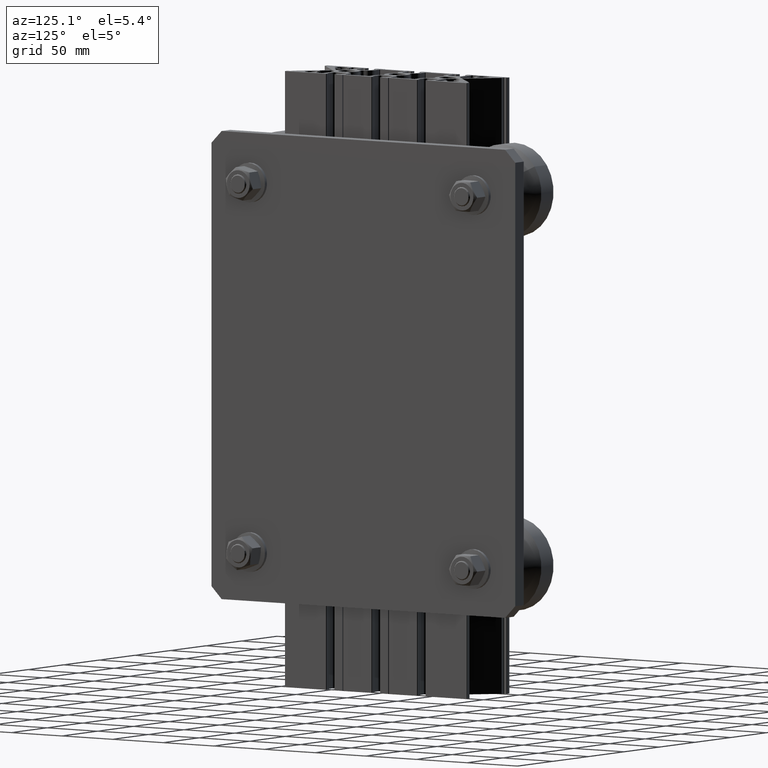
[diagram: clean part render]
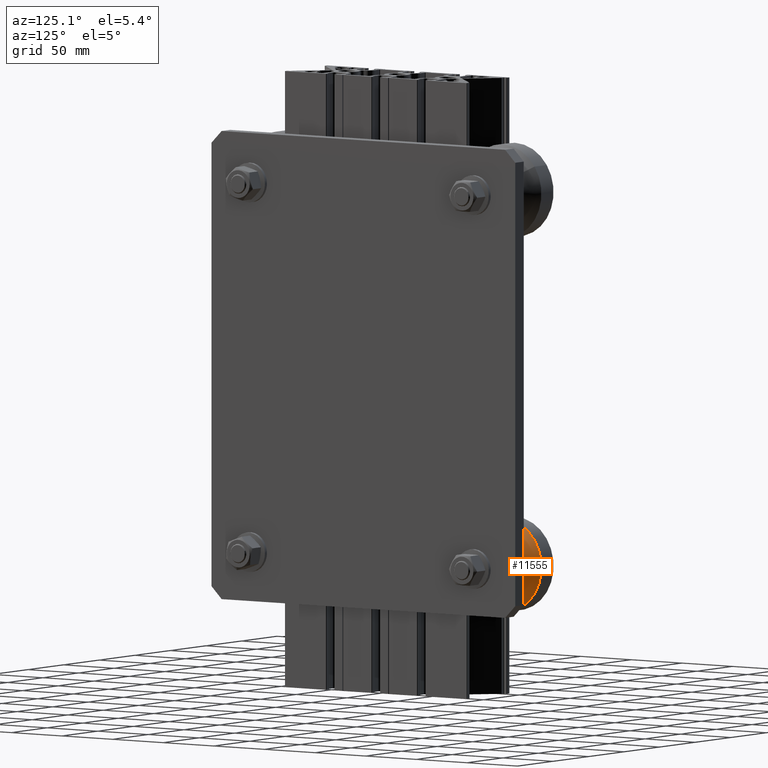
[diagram: same view with one face highlighted and labeled with its STEP entity id]
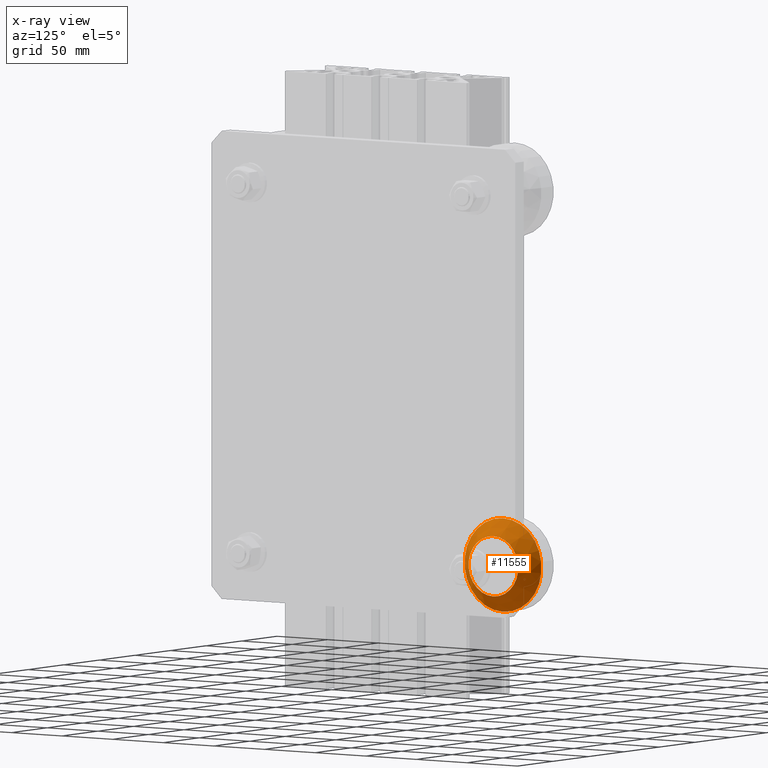
[diagram: x-ray of the same camera — body ghosted, the highlighted face saturated]
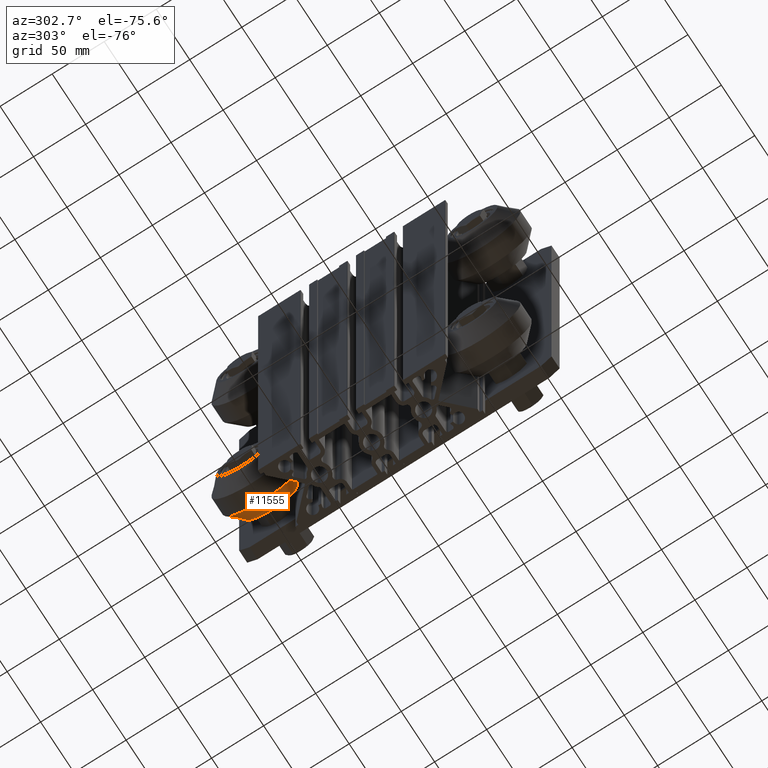
[diagram: same view with one face highlighted and labeled with its STEP entity id]
A machine part, auxiliary view. The second image highlights one B-rep face of the part: STEP entity #11555.
The next image is the same camera in x-ray: the body ghosted, the highlighted face saturated — about 2% of this face is hidden behind the body in this view.
A second angle (auxiliary view) of the same face is appended — the face is thin or edge-on in the first view.
In plain terms, the highlighted conical surface has half-angle 45 deg.
Its self-contained STEP definition (entity closure, byte-faithful):
#404=CONICAL_SURFACE('',#12979,31.25,0.785398163397449);
#1411=FACE_OUTER_BOUND('',#2044,.T.);
#2044=EDGE_LOOP('',(#10390,#10391,#10392,#10393));
#2969=LINE('',#19909,#3841);
#3841=VECTOR('',#16096,31.25);
#4417=CIRCLE('',#12968,24.5);
#4424=CIRCLE('',#12980,38.);
#5506=VERTEX_POINT('',#19885);
#5513=VERTEX_POINT('',#19907);
#7162=EDGE_CURVE('',#5506,#5506,#4417,.T.);
#7172=EDGE_CURVE('',#5513,#5513,#4424,.T.);
#7173=EDGE_CURVE('',#5513,#5506,#2969,.T.);
#10390=ORIENTED_EDGE('',*,*,#7172,.F.);
#10391=ORIENTED_EDGE('',*,*,#7173,.T.);
#10392=ORIENTED_EDGE('',*,*,#7162,.T.);
#10393=ORIENTED_EDGE('',*,*,#7173,.F.);
#11555=ADVANCED_FACE('',(#1411),#404,.T.);
#12968=AXIS2_PLACEMENT_3D('',#19886,#16067,#16068);
#12979=AXIS2_PLACEMENT_3D('',#19906,#16092,#16093);
#12980=AXIS2_PLACEMENT_3D('',#19908,#16094,#16095);
#16067=DIRECTION('center_axis',(1.,0.,0.));
#16068=DIRECTION('ref_axis',(0.,1.,0.));
#16092=DIRECTION('center_axis',(1.,0.,0.));
#16093=DIRECTION('ref_axis',(0.,1.,0.));
#16094=DIRECTION('center_axis',(1.,0.,0.));
#16095=DIRECTION('ref_axis',(0.,1.,0.));
#16096=DIRECTION('',(-0.707106781186547,0.707106781186548,8.65956056235494E-17));
#19885=CARTESIAN_POINT('',(-22.,-24.5,-3.00038465791102E-15));
#19886=CARTESIAN_POINT('Origin',(-22.,0.,0.));
#19906=CARTESIAN_POINT('Origin',(-15.25,0.,0.));
#19907=CARTESIAN_POINT('',(-8.5,-38.,-4.65365783675994E-15));
#19908=CARTESIAN_POINT('Origin',(-8.5,0.,0.));
#19909=CARTESIAN_POINT('',(-15.25,-31.25,-3.82702124733548E-15));